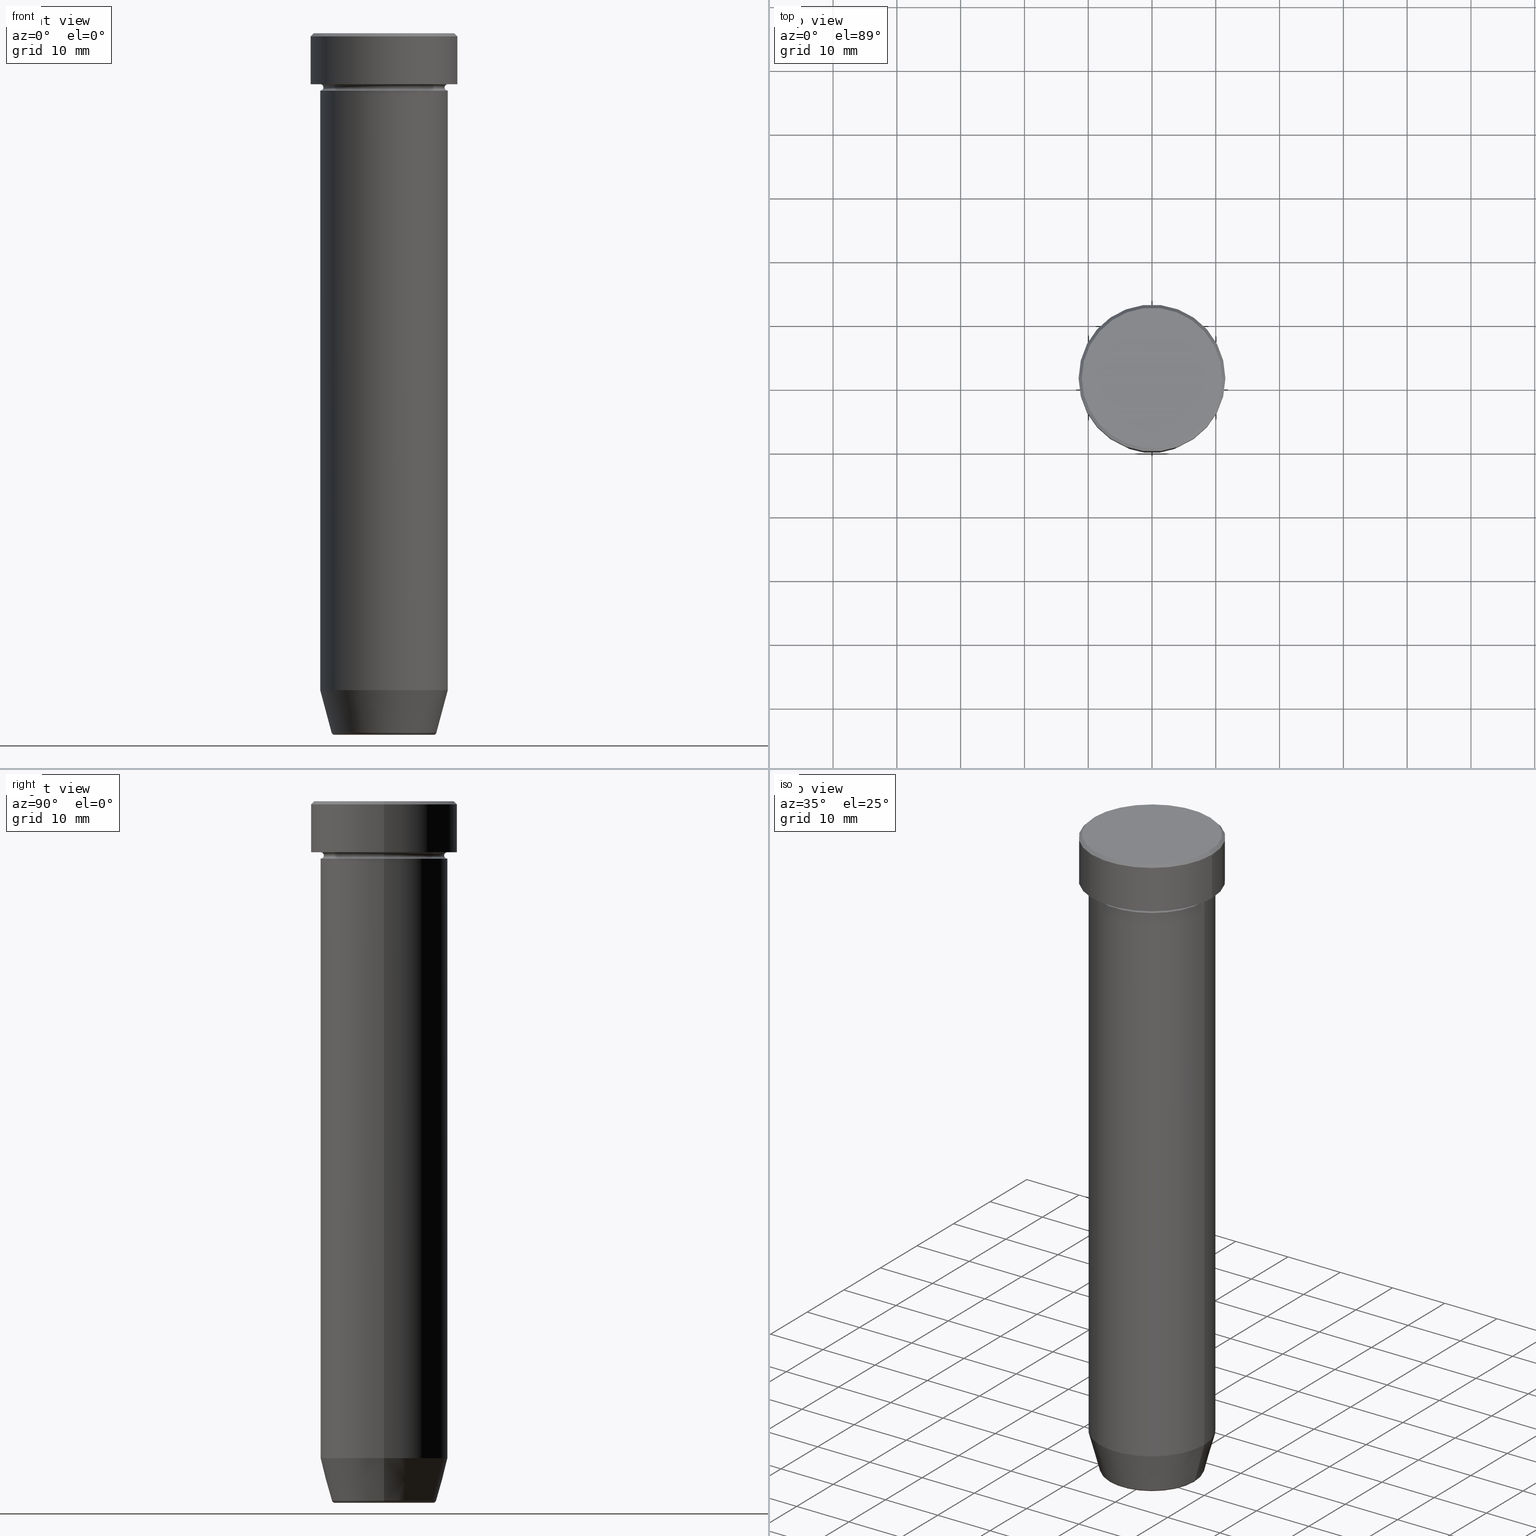
[diagram: canonical four-view strip — front | top / right | iso, engineering-drawing reading convention]
A machine part, canonical four-view strip (front | top / right | iso — engineering-drawing reading convention). The complete STEP part file that produces these views, byte-faithful:
ISO-10303-21;
HEADER;
FILE_DESCRIPTION (( 'STEP AP203' ),
    '1' );
FILE_NAME ('25fa.STEP',
    '2024-01-02T20:53:24',
    ( '' ),
    ( '' ),
    'SwSTEP 2.0',
    'SolidWorks 2019',
    '' );
FILE_SCHEMA (( 'CONFIG_CONTROL_DESIGN' ));
ENDSEC;

DATA;
#1 = CARTESIAN_POINT ( 'NONE',  ( 11.50000000000000000, 0.000000000000000000, 0.000000000000000000 ) ) ;
#2 = ORIENTED_EDGE ( 'NONE', *, *, #563, .T. ) ;
#3 = DIRECTION ( 'NONE',  ( -0.000000000000000000, -0.000000000000000000, 1.000000000000000000 ) ) ;
#4 = EDGE_CURVE ( 'NONE', #48, #431, #222, .T. ) ;
#5 = PERSON_AND_ORGANIZATION ( #367, #352 ) ;
#6 = TOROIDAL_SURFACE ( 'NONE', #512, 10.00000000000000000, 0.5000000000000000000 ) ;
#7 = AXIS2_PLACEMENT_3D ( 'NONE', #395, #582, #166 ) ;
#8 = CC_DESIGN_PERSON_AND_ORGANIZATION_ASSIGNMENT ( #53, #56, ( #172 ) ) ;
#9 = PERSON_AND_ORGANIZATION_ROLE ( 'creator' ) ;
#10 = DIRECTION ( 'NONE',  ( 1.000000000000000000, 0.000000000000000000, 0.000000000000000000 ) ) ;
#11 = CARTESIAN_POINT ( 'NONE',  ( 0.000000000000000000, 0.000000000000000000, -8.000000000000000000 ) ) ;
#12 = PERSON_AND_ORGANIZATION ( #367, #352 ) ;
#13 = CARTESIAN_POINT ( 'NONE',  ( 10.00000000000000000, 0.000000000000000000, 0.000000000000000000 ) ) ;
#14 = ORIENTED_EDGE ( 'NONE', *, *, #335, .F. ) ;
#15 = PERSON_AND_ORGANIZATION ( #367, #352 ) ;
#16 = CIRCLE ( 'NONE', #33, 0.5000000000000004441 ) ;
#17 = AXIS2_PLACEMENT_3D ( 'NONE', #109, #175, #354 ) ;
#18 = DIRECTION ( 'NONE',  ( 1.000000000000000000, 0.000000000000000000, 0.000000000000000000 ) ) ;
#19 = DIRECTION ( 'NONE',  ( -0.000000000000000000, -0.000000000000000000, 1.000000000000000000 ) ) ;
#20 = FACE_OUTER_BOUND ( 'NONE', #575, .T. ) ;
#21 = CARTESIAN_POINT ( 'NONE',  ( -7.740692158992654726, 9.775343368540039135E-16, -109.9999999999999858 ) ) ;
#22 = EDGE_CURVE ( 'NONE', #51, #410, #153, .T. ) ;
#23 = CARTESIAN_POINT ( 'NONE',  ( 0.000000000000000000, 0.000000000000000000, -109.9999999999999858 ) ) ;
#24 = EDGE_LOOP ( 'NONE', ( #357, #372 ) ) ;
#25 = FACE_OUTER_BOUND ( 'NONE', #392, .T. ) ;
#26 = AXIS2_PLACEMENT_3D ( 'NONE', #160, #426, #529 ) ;
#27 = CARTESIAN_POINT ( 'NONE',  ( 0.000000000000000000, 0.000000000000000000, -109.6294095225512564 ) ) ;
#28 = DIRECTION ( 'NONE',  ( -0.000000000000000000, -0.000000000000000000, 1.000000000000000000 ) ) ;
#29 = DIRECTION ( 'NONE',  ( 1.000000000000000000, 0.000000000000000000, 0.000000000000000000 ) ) ;
#30 = CC_DESIGN_PERSON_AND_ORGANIZATION_ASSIGNMENT ( #292, #463, ( #253 ) ) ;
#31 = PLANE ( 'NONE',  #83 ) ;
#32 = DIRECTION ( 'NONE',  ( -0.000000000000000000, -0.000000000000000000, 1.000000000000000000 ) ) ;
#33 = AXIS2_PLACEMENT_3D ( 'NONE', #124, #359, #534 ) ;
#34 = CIRCLE ( 'NONE', #45, 8.223655072137187716 ) ;
#35 = CIRCLE ( 'NONE', #415, 0.5000000000000004441 ) ;
#36 = DIRECTION ( 'NONE',  ( 0.000000000000000000, -1.000000000000000000, 0.000000000000000000 ) ) ;
#37 = EDGE_LOOP ( 'NONE', ( #191, #545, #553, #548 ) ) ;
#38 = EDGE_LOOP ( 'NONE', ( #455, #381 ) ) ;
#39 = EDGE_CURVE ( 'NONE', #136, #521, #16, .T. ) ;
#40 = FACE_OUTER_BOUND ( 'NONE', #240, .T. ) ;
#41 = EDGE_LOOP ( 'NONE', ( #382, #496, #364, #182 ) ) ;
#42 = DIRECTION ( 'NONE',  ( 1.000000000000000000, 0.000000000000000000, 0.000000000000000000 ) ) ;
#43 = ORIENTED_EDGE ( 'NONE', *, *, #554, .F. ) ;
#44 = VECTOR ( 'NONE', #139, 1000.000000000000000 ) ;
#45 = AXIS2_PLACEMENT_3D ( 'NONE', #528, #163, #217 ) ;
#46 = CARTESIAN_POINT ( 'NONE',  ( 0.000000000000000000, 0.000000000000000000, -9.000000000000001776 ) ) ;
#47 = AXIS2_PLACEMENT_3D ( 'NONE', #247, #571, #334 ) ;
#48 = VERTEX_POINT ( 'NONE', #540 ) ;
#49 = DIRECTION ( 'NONE',  ( -0.000000000000000000, -0.000000000000000000, 1.000000000000000000 ) ) ;
#50 = EDGE_CURVE ( 'NONE', #232, #279, #103, .T. ) ;
#51 = VERTEX_POINT ( 'NONE', #308 ) ;
#52 = EDGE_LOOP ( 'NONE', ( #509, #373, #498, #187 ) ) ;
#53 = PERSON_AND_ORGANIZATION ( #367, #352 ) ;
#54 = AXIS2_PLACEMENT_3D ( 'NONE', #264, #443, #29 ) ;
#55 = CARTESIAN_POINT ( 'NONE',  ( -10.00000000000000000, 0.000000000000000000, -8.500000000000000000 ) ) ;
#56 = PERSON_AND_ORGANIZATION_ROLE ( 'design_supplier' ) ;
#57 = CARTESIAN_POINT ( 'NONE',  ( 0.000000000000000000, 0.000000000000000000, 0.000000000000000000 ) ) ;
#58 = EDGE_CURVE ( 'NONE', #136, #48, #111, .T. ) ;
#59 = DIRECTION ( 'NONE',  ( -1.000000000000000000, 0.000000000000000000, 0.000000000000000000 ) ) ;
#60 = ORIENTED_EDGE ( 'NONE', *, *, #39, .F. ) ;
#61 = TOROIDAL_SURFACE ( 'NONE', #133, 10.00000000000000000, 0.5000000000000000000 ) ;
#62 = CARTESIAN_POINT ( 'NONE',  ( 7.740692158992654726, 0.000000000000000000, -109.9999999999999858 ) ) ;
#63 = DIRECTION ( 'NONE',  ( 1.000000000000000000, 0.000000000000000000, 0.000000000000000000 ) ) ;
#64 = ORIENTED_EDGE ( 'NONE', *, *, #453, .T. ) ;
#65 = CARTESIAN_POINT ( 'NONE',  ( 0.000000000000000000, 0.000000000000000000, -8.500000000000000000 ) ) ;
#66 = ADVANCED_FACE ( 'NONE', ( #176 ), #547, .T. ) ;
#67 = ORIENTED_EDGE ( 'NONE', *, *, #85, .F. ) ;
#68 = LINE ( 'NONE', #110, #459 ) ;
#69 = CARTESIAN_POINT ( 'NONE',  ( 0.000000000000000000, 0.000000000000000000, -8.000000000000000000 ) ) ;
#70 = DIRECTION ( 'NONE',  ( 0.000000000000000000, 0.000000000000000000, -1.000000000000000000 ) ) ;
#71 = CARTESIAN_POINT ( 'NONE',  ( 0.000000000000000000, 0.000000000000000000, -8.000000000000000000 ) ) ;
#72 = CARTESIAN_POINT ( 'NONE',  ( 0.000000000000000000, 0.000000000000000000, -22.00000000000000000 ) ) ;
#73 = AXIS2_PLACEMENT_3D ( 'NONE', #27, #429, #128 ) ;
#74 = ADVANCED_FACE ( 'NONE', ( #456 ), #184, .F. ) ;
#75 = DIRECTION ( 'NONE',  ( 1.224646799147353207E-16, 1.000000000000000000, 0.000000000000000000 ) ) ;
#76 = ORIENTED_EDGE ( 'NONE', *, *, #85, .T. ) ;
#77 = DIRECTION ( 'NONE',  ( -1.000000000000000000, -1.224646799147353454E-16, 0.000000000000000000 ) ) ;
#78 = DIRECTION ( 'NONE',  ( 1.000000000000000000, 0.000000000000000000, 0.000000000000000000 ) ) ;
#79 = ORIENTED_EDGE ( 'NONE', *, *, #597, .F. ) ;
#80 = CARTESIAN_POINT ( 'NONE',  ( 0.000000000000000000, 0.000000000000000000, -109.4999999999999858 ) ) ;
#81 = EDGE_LOOP ( 'NONE', ( #332, #319 ) ) ;
#82 = DIRECTION ( 'NONE',  ( 1.224646799147353207E-16, 1.000000000000000000, 0.000000000000000000 ) ) ;
#83 = AXIS2_PLACEMENT_3D ( 'NONE', #486, #310, #351 ) ;
#84 = CC_DESIGN_APPROVAL ( #181, ( #260 ) ) ;
#85 = EDGE_CURVE ( 'NONE', #440, #51, #239, .T. ) ;
#86 = VERTEX_POINT ( 'NONE', #408 ) ;
#87 = ORIENTED_EDGE ( 'NONE', *, *, #420, .T. ) ;
#88 = CARTESIAN_POINT ( 'NONE',  ( 0.000000000000000000, 0.000000000000000000, 0.000000000000000000 ) ) ;
#89 = ORIENTED_EDGE ( 'NONE', *, *, #453, .F. ) ;
#90 = ORIENTED_EDGE ( 'NONE', *, *, #335, .T. ) ;
#91 = TOROIDAL_SURFACE ( 'NONE', #559, 7.740692158992654726, 0.5000000000000000000 ) ;
#92 = DIRECTION ( 'NONE',  ( -0.000000000000000000, -0.000000000000000000, 1.000000000000000000 ) ) ;
#93 = CIRCLE ( 'NONE', #195, 11.50000000000000000 ) ;
#94 = EDGE_CURVE ( 'NONE', #284, #316, #556, .T. ) ;
#95 = CYLINDRICAL_SURFACE ( 'NONE', #186, 10.00000000000000000 ) ;
#96 = VERTEX_POINT ( 'NONE', #143 ) ;
#97 = COORDINATED_UNIVERSAL_TIME_OFFSET ( 1, 0, .AHEAD. ) ;
#98 = FACE_OUTER_BOUND ( 'NONE', #81, .T. ) ;
#99 = PERSON_AND_ORGANIZATION ( #367, #352 ) ;
#100 = FACE_OUTER_BOUND ( 'NONE', #313, .T. ) ;
#101 = ORIENTED_EDGE ( 'NONE', *, *, #141, .T. ) ;
#102 = APPROVAL_ROLE ( '' ) ;
#103 = CIRCLE ( 'NONE', #488, 7.740692158992654726 ) ;
#104 = AXIS2_PLACEMENT_3D ( 'NONE', #69, #487, #209 ) ;
#105 = FACE_OUTER_BOUND ( 'NONE', #140, .T. ) ;
#106 = ORIENTED_EDGE ( 'NONE', *, *, #22, .T. ) ;
#107 = ADVANCED_FACE ( 'NONE', ( #333, #98 ), #283, .T. ) ;
#108 = CARTESIAN_POINT ( 'NONE',  ( 0.000000000000000000, 0.000000000000000000, 0.000000000000000000 ) ) ;
#109 = CARTESIAN_POINT ( 'NONE',  ( 0.000000000000000000, 0.000000000000000000, 0.000000000000000000 ) ) ;
#110 = CARTESIAN_POINT ( 'NONE',  ( -11.50000000000000000, 1.408343819019456176E-15, 0.000000000000000000 ) ) ;
#111 = CIRCLE ( 'NONE', #448, 9.500000000000000000 ) ;
#112 = ADVANCED_FACE ( 'NONE', ( #549 ), #132, .F. ) ;
#113 = TOROIDAL_SURFACE ( 'NONE', #193, 7.740692158992654726, 0.5000000000000000000 ) ;
#114 = CARTESIAN_POINT ( 'NONE',  ( 0.000000000000000000, 0.000000000000000000, 0.000000000000000000 ) ) ;
#115 =( GEOMETRIC_REPRESENTATION_CONTEXT ( 3 ) GLOBAL_UNCERTAINTY_ASSIGNED_CONTEXT ( ( #428 ) ) GLOBAL_UNIT_ASSIGNED_CONTEXT ( ( #374, #225, #503 ) ) REPRESENTATION_CONTEXT ( 'NONE', 'WORKASPACE' ) );
#116 = ORIENTED_EDGE ( 'NONE', *, *, #168, .T. ) ;
#117 = CARTESIAN_POINT ( 'NONE',  ( 10.00000000000000000, 0.000000000000000000, 0.000000000000000000 ) ) ;
#118 = CARTESIAN_POINT ( 'NONE',  ( 0.000000000000000000, 0.000000000000000000, -109.9999999999999858 ) ) ;
#119 = PRODUCT_DEFINITION_SHAPE ( 'NONE', 'NONE',  #587 ) ;
#120 = CARTESIAN_POINT ( 'NONE',  ( 11.50000000000000000, 0.000000000000000000, -0.5000000000000073275 ) ) ;
#121 = CARTESIAN_POINT ( 'NONE',  ( -10.00000000000000000, 1.224646799147353256E-15, -8.500000000000000000 ) ) ;
#122 = ORIENTED_EDGE ( 'NONE', *, *, #94, .F. ) ;
#123 = AXIS2_PLACEMENT_3D ( 'NONE', #170, #483, #433 ) ;
#124 = CARTESIAN_POINT ( 'NONE',  ( 10.00000000000000000, 0.000000000000000000, -8.500000000000000000 ) ) ;
#125 = ORIENTED_EDGE ( 'NONE', *, *, #291, .T. ) ;
#126 = ADVANCED_FACE ( 'NONE', ( #148 ), #423, .T. ) ;
#127 = APPROVAL_DATE_TIME ( #261, #181 ) ;
#128 = DIRECTION ( 'NONE',  ( -1.000000000000000000, 0.000000000000000000, 0.000000000000000000 ) ) ;
#129 = EDGE_LOOP ( 'NONE', ( #460, #106, #276, #457 ) ) ;
#130 = DIRECTION ( 'NONE',  ( -0.000000000000000000, -0.000000000000000000, 1.000000000000000000 ) ) ;
#131 = ADVANCED_FACE ( 'NONE', ( #100 ), #550, .T. ) ;
#132 = PLANE ( 'NONE',  #502 ) ;
#133 = AXIS2_PLACEMENT_3D ( 'NONE', #219, #580, #259 ) ;
#134 = DIRECTION ( 'NONE',  ( 0.000000000000000000, 0.000000000000000000, -1.000000000000000000 ) ) ;
#135 = ORIENTED_EDGE ( 'NONE', *, *, #206, .F. ) ;
#136 = VERTEX_POINT ( 'NONE', #244 ) ;
#137 = CARTESIAN_POINT ( 'NONE',  ( 0.000000000000000000, 0.000000000000000000, 0.000000000000000000 ) ) ;
#138 = ORIENTED_EDGE ( 'NONE', *, *, #442, .T. ) ;
#139 = DIRECTION ( 'NONE',  ( -0.000000000000000000, -0.000000000000000000, 1.000000000000000000 ) ) ;
#140 = EDGE_LOOP ( 'NONE', ( #2, #210, #468, #330 ) ) ;
#141 = EDGE_CURVE ( 'NONE', #263, #521, #471, .T. ) ;
#142 = VERTEX_POINT ( 'NONE', #202 ) ;
#143 = CARTESIAN_POINT ( 'NONE',  ( -10.00000000000000000, 1.224646799147353256E-15, -9.000000000000001776 ) ) ;
#144 = CIRCLE ( 'NONE', #104, 11.50000000000000000 ) ;
#145 = APPLICATION_PROTOCOL_DEFINITION ( 'international standard', 'config_control_design', 1994, #227 ) ;
#146 = VERTEX_POINT ( 'NONE', #481 ) ;
#147 = APPROVAL_DATE_TIME ( #346, #262 ) ;
#148 = FACE_OUTER_BOUND ( 'NONE', #517, .T. ) ;
#149 = CALENDAR_DATE ( 2024, 2, 1 ) ;
#150 = EDGE_CURVE ( 'NONE', #270, #142, #434, .T. ) ;
#151 = DIRECTION ( 'NONE',  ( 1.000000000000000000, 0.000000000000000000, 0.000000000000000000 ) ) ;
#152 = ORIENTED_EDGE ( 'NONE', *, *, #94, .T. ) ;
#153 = CIRCLE ( 'NONE', #369, 10.00000000000000000 ) ;
#154 = PERSON_AND_ORGANIZATION ( #367, #352 ) ;
#155 = VECTOR ( 'NONE', #479, 1000.000000000000000 ) ;
#156 = APPROVAL_PERSON_ORGANIZATION ( #154, #181, #541 ) ;
#157 = MECHANICAL_CONTEXT ( 'NONE', #506, 'mechanical' ) ;
#158 = DIRECTION ( 'NONE',  ( -0.000000000000000000, -0.000000000000000000, 1.000000000000000000 ) ) ;
#159 = CC_DESIGN_DATE_AND_TIME_ASSIGNMENT ( #339, #422, ( #587 ) ) ;
#160 = CARTESIAN_POINT ( 'NONE',  ( 0.000000000000000000, 0.000000000000000000, -8.500000000000000000 ) ) ;
#161 = AXIS2_PLACEMENT_3D ( 'NONE', #413, #179, #366 ) ;
#162 = AXIS2_PLACEMENT_3D ( 'NONE', #214, #542, #63 ) ;
#163 = DIRECTION ( 'NONE',  ( -0.000000000000000000, -0.000000000000000000, 1.000000000000000000 ) ) ;
#164 = CARTESIAN_POINT ( 'NONE',  ( 0.000000000000000000, 0.000000000000000000, -109.9999999999999858 ) ) ;
#165 = DIRECTION ( 'NONE',  ( 1.000000000000000000, 0.000000000000000000, 0.000000000000000000 ) ) ;
#166 = DIRECTION ( 'NONE',  ( -1.000000000000000000, 0.000000000000000000, 0.000000000000000000 ) ) ;
#167 = LINE ( 'NONE', #397, #350 ) ;
#168 = EDGE_CURVE ( 'NONE', #146, #431, #204, .T. ) ;
#169 = DIRECTION ( 'NONE',  ( -0.000000000000000000, -0.000000000000000000, 1.000000000000000000 ) ) ;
#170 = CARTESIAN_POINT ( 'NONE',  ( 0.000000000000000000, 0.000000000000000000, -102.9999999999999858 ) ) ;
#171 = CONICAL_SURFACE ( 'NONE', #414, 11.00000000000000000, 0.7853981633974415066 ) ;
#172 = PRODUCT_DEFINITION_FORMATION_WITH_SPECIFIED_SOURCE ( 'LIBOVOLN�', '', #253, .NOT_KNOWN. ) ;
#173 = DIRECTION ( 'NONE',  ( 1.000000000000000000, 0.000000000000000000, 0.000000000000000000 ) ) ;
#174 = EDGE_LOOP ( 'NONE', ( #273, #409, #290, #376 ) ) ;
#175 = DIRECTION ( 'NONE',  ( -0.000000000000000000, -0.000000000000000000, 1.000000000000000000 ) ) ;
#176 = FACE_OUTER_BOUND ( 'NONE', #129, .T. ) ;
#177 = EDGE_CURVE ( 'NONE', #328, #316, #424, .T. ) ;
#178 = CARTESIAN_POINT ( 'NONE',  ( 0.000000000000000000, 0.000000000000000000, -9.000000000000001776 ) ) ;
#179 = DIRECTION ( 'NONE',  ( 0.000000000000000000, 0.000000000000000000, -1.000000000000000000 ) ) ;
#180 = DIRECTION ( 'NONE',  ( 1.000000000000000000, 0.000000000000000000, 0.000000000000000000 ) ) ;
#181 = APPROVAL ( #343, 'NEUR�EN�' ) ;
#182 = ORIENTED_EDGE ( 'NONE', *, *, #554, .T. ) ;
#183 = CARTESIAN_POINT ( 'NONE',  ( -10.00000000000000000, 1.224646799147353256E-15, 0.000000000000000000 ) ) ;
#184 = PLANE ( 'NONE',  #309 ) ;
#185 = VECTOR ( 'NONE', #318, 1000.000000000000000 ) ;
#186 = AXIS2_PLACEMENT_3D ( 'NONE', #88, #378, #235 ) ;
#187 = ORIENTED_EDGE ( 'NONE', *, *, #168, .F. ) ;
#188 = LOCAL_TIME ( 21, 53, 24.00000000000000000, #203 ) ;
#189 = DIRECTION ( 'NONE',  ( -0.000000000000000000, -0.000000000000000000, 1.000000000000000000 ) ) ;
#190 = ADVANCED_FACE ( 'NONE', ( #574 ), #387, .T. ) ;
#191 = ORIENTED_EDGE ( 'NONE', *, *, #427, .T. ) ;
#192 = MANIFOLD_SOLID_BREP ( 'Zaoblit4', #298 ) ;
#193 = AXIS2_PLACEMENT_3D ( 'NONE', #398, #390, #252 ) ;
#194 = APPROVAL_STATUS ( 'not_yet_approved' ) ;
#195 = AXIS2_PLACEMENT_3D ( 'NONE', #363, #599, #461 ) ;
#196 = CARTESIAN_POINT ( 'NONE',  ( 0.000000000000000000, 0.000000000000000000, 0.000000000000000000 ) ) ;
#197 = DIRECTION ( 'NONE',  ( -1.000000000000000000, 0.000000000000000000, -0.000000000000000000 ) ) ;
#198 = ORIENTED_EDGE ( 'NONE', *, *, #282, .F. ) ;
#199 = ADVANCED_FACE ( 'NONE', ( #526 ), #171, .T. ) ;
#200 = CARTESIAN_POINT ( 'NONE',  ( 0.000000000000000000, 0.000000000000000000, -0.5000000000000073275 ) ) ;
#201 = DATE_AND_TIME ( #419, #386 ) ;
#202 = CARTESIAN_POINT ( 'NONE',  ( -11.00000000000000000, 0.000000000000000000, 0.000000000000000000 ) ) ;
#203 = COORDINATED_UNIVERSAL_TIME_OFFSET ( 1, 0, .AHEAD. ) ;
#204 = CIRCLE ( 'NONE', #324, 10.00000000000000000 ) ;
#205 = DIRECTION ( 'NONE',  ( -1.000000000000000000, 0.000000000000000000, 0.000000000000000000 ) ) ;
#206 = EDGE_CURVE ( 'NONE', #142, #328, #349, .T. ) ;
#207 = DIRECTION ( 'NONE',  ( 0.000000000000000000, 0.000000000000000000, -1.000000000000000000 ) ) ;
#208 = ORIENTED_EDGE ( 'NONE', *, *, #141, .F. ) ;
#209 = DIRECTION ( 'NONE',  ( 1.000000000000000000, 0.000000000000000000, 0.000000000000000000 ) ) ;
#210 = ORIENTED_EDGE ( 'NONE', *, *, #345, .T. ) ;
#211 = VECTOR ( 'NONE', #19, 1000.000000000000000 ) ;
#212 = DIRECTION ( 'NONE',  ( -0.000000000000000000, -0.000000000000000000, 1.000000000000000000 ) ) ;
#213 = AXIS2_PLACEMENT_3D ( 'NONE', #137, #92, #180 ) ;
#214 = CARTESIAN_POINT ( 'NONE',  ( 0.000000000000000000, 0.000000000000000000, -22.00000000000000000 ) ) ;
#215 = ADVANCED_FACE ( 'NONE', ( #340 ), #567, .F. ) ;
#216 = FACE_OUTER_BOUND ( 'NONE', #561, .T. ) ;
#217 = DIRECTION ( 'NONE',  ( -1.000000000000000000, 0.000000000000000000, 0.000000000000000000 ) ) ;
#218 = CC_DESIGN_PERSON_AND_ORGANIZATION_ASSIGNMENT ( #99, #9, ( #172 ) ) ;
#219 = CARTESIAN_POINT ( 'NONE',  ( 0.000000000000000000, 0.000000000000000000, -8.500000000000000000 ) ) ;
#220 = FACE_OUTER_BOUND ( 'NONE', #505, .T. ) ;
#221 = DIRECTION ( 'NONE',  ( 1.000000000000000000, 0.000000000000000000, 0.000000000000000000 ) ) ;
#222 = CIRCLE ( 'NONE', #558, 0.5000000000000004441 ) ;
#223 = CIRCLE ( 'NONE', #277, 10.00000000000000000 ) ;
#224 = ADVANCED_FACE ( 'NONE', ( #105 ), #6, .F. ) ;
#225 =( NAMED_UNIT ( * ) PLANE_ANGLE_UNIT ( ) SI_UNIT ( $, .RADIAN. ) );
#226 = ORIENTED_EDGE ( 'NONE', *, *, #50, .T. ) ;
#227 = APPLICATION_CONTEXT ( 'configuration controlled 3d designs of mechanical parts and assemblies' ) ;
#228 = VERTEX_POINT ( 'NONE', #294 ) ;
#229 = AXIS2_PLACEMENT_3D ( 'NONE', #321, #501, #508 ) ;
#230 = CARTESIAN_POINT ( 'NONE',  ( -8.124355652982135467, 9.949466145559276583E-16, -109.9999999999999858 ) ) ;
#231 = AXIS2_PLACEMENT_3D ( 'NONE', #200, #568, #151 ) ;
#232 = VERTEX_POINT ( 'NONE', #62 ) ;
#233 = CARTESIAN_POINT ( 'NONE',  ( 0.000000000000000000, 0.000000000000000000, -8.500000000000000000 ) ) ;
#234 = EDGE_LOOP ( 'NONE', ( #476, #116 ) ) ;
#235 = DIRECTION ( 'NONE',  ( 1.000000000000000000, 0.000000000000000000, 0.000000000000000000 ) ) ;
#236 = EDGE_CURVE ( 'NONE', #142, #270, #362, .T. ) ;
#237 = DIRECTION ( 'NONE',  ( 0.000000000000000000, -0.000000000000000000, 1.000000000000000000 ) ) ;
#238 = ORIENTED_EDGE ( 'NONE', *, *, #524, .T. ) ;
#239 = LINE ( 'NONE', #230, #412 ) ;
#240 = EDGE_LOOP ( 'NONE', ( #271, #238, #421, #60 ) ) ;
#241 = EDGE_CURVE ( 'NONE', #410, #514, #446, .T. ) ;
#242 = AXIS2_PLACEMENT_3D ( 'NONE', #306, #576, #78 ) ;
#243 = DIRECTION ( 'NONE',  ( -0.000000000000000000, -0.000000000000000000, 1.000000000000000000 ) ) ;
#244 = CARTESIAN_POINT ( 'NONE',  ( 9.500000000000000000, 0.000000000000000000, -8.500000000000000000 ) ) ;
#245 = EDGE_LOOP ( 'NONE', ( #338, #555, #101, #303 ) ) ;
#246 = EDGE_CURVE ( 'NONE', #86, #514, #223, .T. ) ;
#247 = CARTESIAN_POINT ( 'NONE',  ( 0.000000000000000000, 0.000000000000000000, 0.000000000000000000 ) ) ;
#248 = VECTOR ( 'NONE', #344, 1000.000000000000000 ) ;
#249 = LOCAL_TIME ( 21, 53, 24.00000000000000000, #97 ) ;
#250 = DIRECTION ( 'NONE',  ( -0.000000000000000000, -0.000000000000000000, 1.000000000000000000 ) ) ;
#251 = ORIENTED_EDGE ( 'NONE', *, *, #206, .T. ) ;
#252 = DIRECTION ( 'NONE',  ( 1.000000000000000000, 0.000000000000000000, 0.000000000000000000 ) ) ;
#253 = PRODUCT ( '25fa', '25fa', '', ( #157 ) ) ;
#254 = CARTESIAN_POINT ( 'NONE',  ( -10.00000000000000000, 1.224646799147353256E-15, -22.00000000000000000 ) ) ;
#255 = FACE_OUTER_BOUND ( 'NONE', #41, .T. ) ;
#256 = ADVANCED_FACE ( 'NONE', ( #497 ), #543, .T. ) ;
#257 = DIRECTION ( 'NONE',  ( 1.000000000000000000, 0.000000000000000000, 0.000000000000000000 ) ) ;
#258 = AXIS2_PLACEMENT_3D ( 'NONE', #164, #439, #221 ) ;
#259 = DIRECTION ( 'NONE',  ( 1.000000000000000000, 0.000000000000000000, 0.000000000000000000 ) ) ;
#260 = SECURITY_CLASSIFICATION ( '', '', #285 ) ;
#261 = DATE_AND_TIME ( #581, #552 ) ;
#262 = APPROVAL ( #194, 'NEUR�EN�' ) ;
#263 = VERTEX_POINT ( 'NONE', #307 ) ;
#264 = CARTESIAN_POINT ( 'NONE',  ( 0.000000000000000000, 0.000000000000000000, -22.00000000000000000 ) ) ;
#265 = ORIENTED_EDGE ( 'NONE', *, *, #442, .F. ) ;
#266 = DIRECTION ( 'NONE',  ( 1.000000000000000000, 0.000000000000000000, 0.000000000000000000 ) ) ;
#267 = CC_DESIGN_PERSON_AND_ORGANIZATION_ASSIGNMENT ( #562, #472, ( #587 ) ) ;
#268 = VECTOR ( 'NONE', #49, 1000.000000000000000 ) ;
#269 = ADVANCED_BREP_SHAPE_REPRESENTATION ( '25fa', ( #391, #192, #47 ), #115 ) ;
#270 = VERTEX_POINT ( 'NONE', #320 ) ;
#271 = ORIENTED_EDGE ( 'NONE', *, *, #563, .F. ) ;
#272 = CARTESIAN_POINT ( 'NONE',  ( 0.000000000000000000, 7.347880794884118356E-15, -109.9999999999999858 ) ) ;
#273 = ORIENTED_EDGE ( 'NONE', *, *, #274, .F. ) ;
#274 = EDGE_CURVE ( 'NONE', #279, #440, #371, .T. ) ;
#275 = DIRECTION ( 'NONE',  ( -1.000000000000000000, 1.224646799147353454E-16, 0.000000000000000000 ) ) ;
#276 = ORIENTED_EDGE ( 'NONE', *, *, #241, .T. ) ;
#277 = AXIS2_PLACEMENT_3D ( 'NONE', #430, #212, #394 ) ;
#278 = AXIS2_PLACEMENT_3D ( 'NONE', #595, #189, #510 ) ;
#279 = VERTEX_POINT ( 'NONE', #21 ) ;
#280 = DIRECTION ( 'NONE',  ( 1.000000000000000000, 0.000000000000000000, 0.000000000000000000 ) ) ;
#281 = APPROVAL_DATE_TIME ( #411, #474 ) ;
#282 = EDGE_CURVE ( 'NONE', #445, #263, #311, .T. ) ;
#283 = PLANE ( 'NONE',  #161 ) ;
#284 = VERTEX_POINT ( 'NONE', #484 ) ;
#285 = SECURITY_CLASSIFICATION_LEVEL ( 'unclassified' ) ;
#286 = CARTESIAN_POINT ( 'NONE',  ( 0.000000000000000000, 0.000000000000000000, 0.000000000000000000 ) ) ;
#287 = AXIS2_PLACEMENT_3D ( 'NONE', #114, #207, #572 ) ;
#288 = AXIS2_PLACEMENT_3D ( 'NONE', #523, #519, #475 ) ;
#289 = DIRECTION ( 'NONE',  ( 0.000000000000000000, 0.000000000000000000, -1.000000000000000000 ) ) ;
#290 = ORIENTED_EDGE ( 'NONE', *, *, #570, .T. ) ;
#291 = EDGE_CURVE ( 'NONE', #228, #284, #144, .T. ) ;
#292 = PERSON_AND_ORGANIZATION ( #367, #352 ) ;
#293 = FACE_OUTER_BOUND ( 'NONE', #591, .T. ) ;
#294 = CARTESIAN_POINT ( 'NONE',  ( -11.50000000000000000, 1.408343819019456176E-15, -8.000000000000000000 ) ) ;
#295 = ORIENTED_EDGE ( 'NONE', *, *, #407, .T. ) ;
#296 = APPLICATION_PROTOCOL_DEFINITION ( 'international standard', 'config_control_design', 1994, #506 ) ;
#297 = DIRECTION ( 'NONE',  ( 0.000000000000000000, 0.000000000000000000, -1.000000000000000000 ) ) ;
#298 = CLOSED_SHELL ( 'NONE', ( #327, #469, #360, #112, #66, #317, #74, #458 ) ) ;
#299 = AXIS2_PLACEMENT_3D ( 'NONE', #23, #393, #173 ) ;
#300 = AXIS2_PLACEMENT_3D ( 'NONE', #121, #75, #275 ) ;
#301 = CARTESIAN_POINT ( 'NONE',  ( -11.00000000000000000, 0.000000000000000000, 0.000000000000000000 ) ) ;
#302 = SHAPE_DEFINITION_REPRESENTATION ( #119, #269 ) ;
#303 = ORIENTED_EDGE ( 'NONE', *, *, #537, .F. ) ;
#304 = DIRECTION ( 'NONE',  ( -1.000000000000000000, 1.224646799147353454E-16, 0.000000000000000000 ) ) ;
#305 = ADVANCED_FACE ( 'NONE', ( #255 ), #61, .F. ) ;
#306 = CARTESIAN_POINT ( 'NONE',  ( 0.000000000000000000, 0.000000000000000000, -109.9999999999999858 ) ) ;
#307 = CARTESIAN_POINT ( 'NONE',  ( 10.00000000000000000, 0.000000000000000000, -22.00000000000000000 ) ) ;
#308 = CARTESIAN_POINT ( 'NONE',  ( -10.00000000000000000, 1.224646799147353256E-15, -102.9999999999999858 ) ) ;
#309 = AXIS2_PLACEMENT_3D ( 'NONE', #272, #237, #42 ) ;
#310 = DIRECTION ( 'NONE',  ( 0.000000000000000000, 0.000000000000000000, -1.000000000000000000 ) ) ;
#311 = CIRCLE ( 'NONE', #341, 10.00000000000000000 ) ;
#312 = AXIS2_PLACEMENT_3D ( 'NONE', #178, #592, #322 ) ;
#313 = EDGE_LOOP ( 'NONE', ( #14, #348, #251, #79 ) ) ;
#314 = CARTESIAN_POINT ( 'NONE',  ( 10.00000000000000000, 1.224646799147353256E-15, -8.500000000000000000 ) ) ;
#315 = DIRECTION ( 'NONE',  ( -0.000000000000000000, -0.000000000000000000, 1.000000000000000000 ) ) ;
#316 = VERTEX_POINT ( 'NONE', #120 ) ;
#317 = ADVANCED_FACE ( 'NONE', ( #25 ), #436, .T. ) ;
#318 = DIRECTION ( 'NONE',  ( -0.000000000000000000, -0.000000000000000000, 1.000000000000000000 ) ) ;
#319 = ORIENTED_EDGE ( 'NONE', *, *, #291, .F. ) ;
#320 = CARTESIAN_POINT ( 'NONE',  ( 11.00000000000000000, 1.377727649040772389E-15, 0.000000000000000000 ) ) ;
#321 = CARTESIAN_POINT ( 'NONE',  ( 0.000000000000000000, 0.000000000000000000, 0.000000000000000000 ) ) ;
#322 = DIRECTION ( 'NONE',  ( 1.000000000000000000, 0.000000000000000000, 0.000000000000000000 ) ) ;
#323 = CLOSED_SHELL ( 'NONE', ( #199, #224, #544, #126, #579, #490, #190, #377, #107, #256, #305, #215, #131 ) ) ;
#324 = AXIS2_PLACEMENT_3D ( 'NONE', #11, #250, #59 ) ;
#325 = TOROIDAL_SURFACE ( 'NONE', #278, 10.00000000000000000, 0.5000000000000000000 ) ;
#326 = CYLINDRICAL_SURFACE ( 'NONE', #213, 11.50000000000000000 ) ;
#327 = ADVANCED_FACE ( 'NONE', ( #216 ), #91, .T. ) ;
#328 = VERTEX_POINT ( 'NONE', #396 ) ;
#329 = DIRECTION ( 'NONE',  ( 1.000000000000000000, 0.000000000000000000, 0.000000000000000000 ) ) ;
#330 = ORIENTED_EDGE ( 'NONE', *, *, #4, .F. ) ;
#331 = VERTEX_POINT ( 'NONE', #584 ) ;
#332 = ORIENTED_EDGE ( 'NONE', *, *, #500, .F. ) ;
#333 = FACE_BOUND ( 'NONE', #234, .T. ) ;
#334 = DIRECTION ( 'NONE',  ( 1.000000000000000000, 0.000000000000000000, 0.000000000000000000 ) ) ;
#335 = EDGE_CURVE ( 'NONE', #270, #316, #167, .T. ) ;
#336 = CALENDAR_DATE ( 2024, 2, 1 ) ;
#337 = DIRECTION ( 'NONE',  ( -0.000000000000000000, -0.000000000000000000, 1.000000000000000000 ) ) ;
#338 = ORIENTED_EDGE ( 'NONE', *, *, #370, .F. ) ;
#339 = DATE_AND_TIME ( #149, #249 ) ;
#340 = FACE_OUTER_BOUND ( 'NONE', #52, .T. ) ;
#341 = AXIS2_PLACEMENT_3D ( 'NONE', #72, #28, #399 ) ;
#342 = CIRCLE ( 'NONE', #596, 9.500000000000000000 ) ;
#343 = APPROVAL_STATUS ( 'not_yet_approved' ) ;
#344 = DIRECTION ( 'NONE',  ( -0.7071067811865426878, 0.000000000000000000, -0.7071067811865524577 ) ) ;
#345 = EDGE_CURVE ( 'NONE', #136, #146, #449, .T. ) ;
#346 = DATE_AND_TIME ( #336, #188 ) ;
#347 = DIRECTION ( 'NONE',  ( 0.000000000000000000, 0.000000000000000000, -1.000000000000000000 ) ) ;
#348 = ORIENTED_EDGE ( 'NONE', *, *, #236, .F. ) ;
#349 = LINE ( 'NONE', #301, #248 ) ;
#350 = VECTOR ( 'NONE', #358, 1000.000000000000000 ) ;
#351 = DIRECTION ( 'NONE',  ( -1.000000000000000000, 0.000000000000000000, -0.000000000000000000 ) ) ;
#352 = ORGANIZATION ( 'NEUR�EN�', 'NEUR�EN�', '' ) ;
#353 = EDGE_CURVE ( 'NONE', #514, #86, #551, .T. ) ;
#354 = DIRECTION ( 'NONE',  ( 1.000000000000000000, 0.000000000000000000, 0.000000000000000000 ) ) ;
#355 = CARTESIAN_POINT ( 'NONE',  ( 8.124355652982135467, 0.000000000000000000, -109.9999999999999858 ) ) ;
#356 = DIRECTION ( 'NONE',  ( -0.000000000000000000, -0.000000000000000000, 1.000000000000000000 ) ) ;
#357 = ORIENTED_EDGE ( 'NONE', *, *, #353, .T. ) ;
#358 = DIRECTION ( 'NONE',  ( 0.7071067811865426878, 8.659560562354874926E-17, -0.7071067811865524577 ) ) ;
#359 = DIRECTION ( 'NONE',  ( 0.000000000000000000, -1.000000000000000000, 0.000000000000000000 ) ) ;
#360 = ADVANCED_FACE ( 'NONE', ( #585 ), #95, .T. ) ;
#361 = CARTESIAN_POINT ( 'NONE',  ( -10.00000000000000000, 0.000000000000000000, -8.000000000000000000 ) ) ;
#362 = CIRCLE ( 'NONE', #17, 11.00000000000000000 ) ;
#363 = CARTESIAN_POINT ( 'NONE',  ( 0.000000000000000000, 0.000000000000000000, -0.5000000000000073275 ) ) ;
#364 = ORIENTED_EDGE ( 'NONE', *, *, #39, .T. ) ;
#365 = ORIENTED_EDGE ( 'NONE', *, *, #500, .T. ) ;
#366 = DIRECTION ( 'NONE',  ( -1.000000000000000000, 0.000000000000000000, -0.000000000000000000 ) ) ;
#367 = PERSON ( 'NEUR�EN�', 'NEUR�EN�', 'NEUR�EN�', ('NEUR�EN�'), ('NEUR�EN�'), ('NEUR�EN�') ) ;
#368 = AXIS2_PLACEMENT_3D ( 'NONE', #57, #158, #564 ) ;
#369 = AXIS2_PLACEMENT_3D ( 'NONE', #447, #169, #165 ) ;
#370 = EDGE_CURVE ( 'NONE', #445, #96, #406, .T. ) ;
#371 = CIRCLE ( 'NONE', #435, 0.5000000000000004441 ) ;
#372 = ORIENTED_EDGE ( 'NONE', *, *, #246, .T. ) ;
#373 = ORIENTED_EDGE ( 'NONE', *, *, #58, .T. ) ;
#374 =( LENGTH_UNIT ( ) NAMED_UNIT ( * ) SI_UNIT ( .MILLI., .METRE. ) );
#375 = ORIENTED_EDGE ( 'NONE', *, *, #274, .T. ) ;
#376 = ORIENTED_EDGE ( 'NONE', *, *, #407, .F. ) ;
#377 = ADVANCED_FACE ( 'NONE', ( #293 ), #473, .T. ) ;
#378 = DIRECTION ( 'NONE',  ( -0.000000000000000000, -0.000000000000000000, 1.000000000000000000 ) ) ;
#379 = CIRCLE ( 'NONE', #162, 10.00000000000000000 ) ;
#380 = AXIS2_PLACEMENT_3D ( 'NONE', #46, #3, #329 ) ;
#381 = ORIENTED_EDGE ( 'NONE', *, *, #150, .T. ) ;
#382 = ORIENTED_EDGE ( 'NONE', *, *, #524, .F. ) ;
#383 = DIRECTION ( 'NONE',  ( -1.000000000000000000, 0.000000000000000000, 0.000000000000000000 ) ) ;
#384 = EDGE_CURVE ( 'NONE', #279, #232, #477, .T. ) ;
#385 = CIRCLE ( 'NONE', #123, 10.00000000000000000 ) ;
#386 = LOCAL_TIME ( 21, 53, 24.00000000000000000, #470 ) ;
#387 = PLANE ( 'NONE',  #288 ) ;
#388 = EDGE_LOOP ( 'NONE', ( #365, #138, #583, #122 ) ) ;
#389 = EDGE_CURVE ( 'NONE', #51, #86, #444, .T. ) ;
#390 = DIRECTION ( 'NONE',  ( -0.000000000000000000, -0.000000000000000000, 1.000000000000000000 ) ) ;
#391 = MANIFOLD_SOLID_BREP ( 'Zkosen�1', #323 ) ;
#392 = EDGE_LOOP ( 'NONE', ( #67, #295, #87, #598 ) ) ;
#393 = DIRECTION ( 'NONE',  ( 0.000000000000000000, 0.000000000000000000, -1.000000000000000000 ) ) ;
#394 = DIRECTION ( 'NONE',  ( 1.000000000000000000, 0.000000000000000000, 0.000000000000000000 ) ) ;
#395 = CARTESIAN_POINT ( 'NONE',  ( 0.000000000000000000, 0.000000000000000000, -8.000000000000000000 ) ) ;
#396 = CARTESIAN_POINT ( 'NONE',  ( -11.50000000000000000, 1.408343819019456176E-15, -0.5000000000000073275 ) ) ;
#397 = CARTESIAN_POINT ( 'NONE',  ( 11.00000000000000000, 1.347111479062088405E-15, 0.000000000000000000 ) ) ;
#398 = CARTESIAN_POINT ( 'NONE',  ( 0.000000000000000000, 0.000000000000000000, -109.4999999999999858 ) ) ;
#399 = DIRECTION ( 'NONE',  ( 1.000000000000000000, 0.000000000000000000, 0.000000000000000000 ) ) ;
#400 = DIRECTION ( 'NONE',  ( 1.000000000000000000, 0.000000000000000000, 0.000000000000000000 ) ) ;
#401 = EDGE_CURVE ( 'NONE', #331, #440, #34, .T. ) ;
#402 = FACE_OUTER_BOUND ( 'NONE', #388, .T. ) ;
#403 = ORIENTED_EDGE ( 'NONE', *, *, #150, .F. ) ;
#404 = CIRCLE ( 'NONE', #73, 8.223655072137187716 ) ;
#405 = DIRECTION ( 'NONE',  ( -0.000000000000000000, -0.000000000000000000, 1.000000000000000000 ) ) ;
#406 = LINE ( 'NONE', #183, #268 ) ;
#407 = EDGE_CURVE ( 'NONE', #440, #331, #404, .T. ) ;
#408 = CARTESIAN_POINT ( 'NONE',  ( -10.00000000000000000, 1.224646799147353256E-15, -22.00000000000000000 ) ) ;
#409 = ORIENTED_EDGE ( 'NONE', *, *, #50, .F. ) ;
#410 = VERTEX_POINT ( 'NONE', #589 ) ;
#411 = DATE_AND_TIME ( #417, #531 ) ;
#412 = VECTOR ( 'NONE', #516, 1000.000000000000000 ) ;
#413 = CARTESIAN_POINT ( 'NONE',  ( 0.000000000000000000, 11.50000000000000000, -8.000000000000000000 ) ) ;
#414 = AXIS2_PLACEMENT_3D ( 'NONE', #108, #297, #383 ) ;
#415 = AXIS2_PLACEMENT_3D ( 'NONE', #511, #36, #134 ) ;
#416 = ORIENTED_EDGE ( 'NONE', *, *, #420, .F. ) ;
#417 = CALENDAR_DATE ( 2024, 2, 1 ) ;
#418 = DIRECTION ( 'NONE',  ( -0.000000000000000000, -1.000000000000000000, -0.000000000000000000 ) ) ;
#419 = CALENDAR_DATE ( 2024, 2, 1 ) ;
#420 = EDGE_CURVE ( 'NONE', #331, #410, #532, .T. ) ;
#421 = ORIENTED_EDGE ( 'NONE', *, *, #537, .T. ) ;
#422 = DATE_TIME_ROLE ( 'creation_date' ) ;
#423 = CYLINDRICAL_SURFACE ( 'NONE', #368, 10.00000000000000000 ) ;
#424 = CIRCLE ( 'NONE', #231, 11.50000000000000000 ) ;
#425 = APPROVAL_PERSON_ORGANIZATION ( #15, #474, #102 ) ;
#426 = DIRECTION ( 'NONE',  ( 0.000000000000000000, 0.000000000000000000, -1.000000000000000000 ) ) ;
#427 = EDGE_CURVE ( 'NONE', #410, #51, #385, .T. ) ;
#428 = UNCERTAINTY_MEASURE_WITH_UNIT (LENGTH_MEASURE( 1.000000000000000082E-05 ), #374, 'distance_accuracy_value', 'NONE');
#429 = DIRECTION ( 'NONE',  ( -0.000000000000000000, -0.000000000000000000, 1.000000000000000000 ) ) ;
#430 = CARTESIAN_POINT ( 'NONE',  ( 0.000000000000000000, 0.000000000000000000, -22.00000000000000000 ) ) ;
#431 = VERTEX_POINT ( 'NONE', #361 ) ;
#432 = CC_DESIGN_PERSON_AND_ORGANIZATION_ASSIGNMENT ( #12, #525, ( #260 ) ) ;
#433 = DIRECTION ( 'NONE',  ( 1.000000000000000000, 0.000000000000000000, 0.000000000000000000 ) ) ;
#434 = CIRCLE ( 'NONE', #466, 11.00000000000000000 ) ;
#435 = AXIS2_PLACEMENT_3D ( 'NONE', #499, #82, #304 ) ;
#436 = CONICAL_SURFACE ( 'NONE', #258, 8.124355652982135467, 0.2617993877991500740 ) ;
#437 = CARTESIAN_POINT ( 'NONE',  ( -10.00000000000000000, 1.224646799147353256E-15, 0.000000000000000000 ) ) ;
#438 = CC_DESIGN_SECURITY_CLASSIFICATION ( #260, ( #172 ) ) ;
#439 = DIRECTION ( 'NONE',  ( -0.000000000000000000, -0.000000000000000000, 1.000000000000000000 ) ) ;
#440 = VERTEX_POINT ( 'NONE', #535 ) ;
#441 = DIRECTION ( 'NONE',  ( -0.000000000000000000, -0.000000000000000000, 1.000000000000000000 ) ) ;
#442 = EDGE_CURVE ( 'NONE', #228, #328, #68, .T. ) ;
#443 = DIRECTION ( 'NONE',  ( -0.000000000000000000, -0.000000000000000000, 1.000000000000000000 ) ) ;
#444 = LINE ( 'NONE', #437, #185 ) ;
#445 = VERTEX_POINT ( 'NONE', #254 ) ;
#446 = LINE ( 'NONE', #117, #588 ) ;
#447 = CARTESIAN_POINT ( 'NONE',  ( 0.000000000000000000, 0.000000000000000000, -102.9999999999999858 ) ) ;
#448 = AXIS2_PLACEMENT_3D ( 'NONE', #586, #315, #590 ) ;
#449 = CIRCLE ( 'NONE', #489, 0.5000000000000004441 ) ;
#450 = CC_DESIGN_APPROVAL ( #474, ( #587 ) ) ;
#451 = ORIENTED_EDGE ( 'NONE', *, *, #427, .F. ) ;
#452 = DIRECTION ( 'NONE',  ( 0.000000000000000000, 0.000000000000000000, -1.000000000000000000 ) ) ;
#453 = EDGE_CURVE ( 'NONE', #263, #445, #379, .T. ) ;
#454 = ORIENTED_EDGE ( 'NONE', *, *, #597, .T. ) ;
#455 = ORIENTED_EDGE ( 'NONE', *, *, #236, .T. ) ;
#456 = FACE_OUTER_BOUND ( 'NONE', #557, .T. ) ;
#457 = ORIENTED_EDGE ( 'NONE', *, *, #246, .F. ) ;
#458 = ADVANCED_FACE ( 'NONE', ( #495 ), #113, .T. ) ;
#459 = VECTOR ( 'NONE', #441, 1000.000000000000000 ) ;
#460 = ORIENTED_EDGE ( 'NONE', *, *, #389, .F. ) ;
#461 = DIRECTION ( 'NONE',  ( 1.000000000000000000, 0.000000000000000000, 0.000000000000000000 ) ) ;
#462 = ORIENTED_EDGE ( 'NONE', *, *, #401, .T. ) ;
#463 = PERSON_AND_ORGANIZATION_ROLE ( 'design_owner' ) ;
#464 = APPROVAL_ROLE ( '' ) ;
#465 = CARTESIAN_POINT ( 'NONE',  ( 0.000000000000000000, 0.000000000000000000, -22.00000000000000000 ) ) ;
#466 = AXIS2_PLACEMENT_3D ( 'NONE', #286, #337, #18 ) ;
#467 = AXIS2_PLACEMENT_3D ( 'NONE', #71, #356, #257 ) ;
#468 = ORIENTED_EDGE ( 'NONE', *, *, #518, .F. ) ;
#469 = ADVANCED_FACE ( 'NONE', ( #20 ), #504, .T. ) ;
#470 = COORDINATED_UNIVERSAL_TIME_OFFSET ( 1, 0, .AHEAD. ) ;
#471 = LINE ( 'NONE', #13, #211 ) ;
#472 = PERSON_AND_ORGANIZATION_ROLE ( 'creator' ) ;
#473 = CYLINDRICAL_SURFACE ( 'NONE', #594, 11.50000000000000000 ) ;
#474 = APPROVAL ( #522, 'NEUR�EN�' ) ;
#475 = DIRECTION ( 'NONE',  ( 1.000000000000000000, 0.000000000000000000, 0.000000000000000000 ) ) ;
#476 = ORIENTED_EDGE ( 'NONE', *, *, #518, .T. ) ;
#477 = CIRCLE ( 'NONE', #299, 7.740692158992654726 ) ;
#478 = CC_DESIGN_APPROVAL ( #262, ( #172 ) ) ;
#479 = DIRECTION ( 'NONE',  ( 0.2588190451025213501, 0.000000000000000000, 0.9659258262890680902 ) ) ;
#480 = PRODUCT_RELATED_PRODUCT_CATEGORY ( 'detail', '', ( #253 ) ) ;
#481 = CARTESIAN_POINT ( 'NONE',  ( 10.00000000000000000, 1.224646799147353256E-15, -8.000000000000000000 ) ) ;
#482 = DESIGN_CONTEXT ( 'detailed design', #227, 'design' ) ;
#483 = DIRECTION ( 'NONE',  ( -0.000000000000000000, -0.000000000000000000, 1.000000000000000000 ) ) ;
#484 = CARTESIAN_POINT ( 'NONE',  ( 11.50000000000000000, 0.000000000000000000, -8.000000000000000000 ) ) ;
#485 = COORDINATED_UNIVERSAL_TIME_OFFSET ( 1, 0, .AHEAD. ) ;
#486 = CARTESIAN_POINT ( 'NONE',  ( 0.000000000000000000, 10.00000000000000000, -22.00000000000000000 ) ) ;
#487 = DIRECTION ( 'NONE',  ( -0.000000000000000000, -0.000000000000000000, 1.000000000000000000 ) ) ;
#488 = AXIS2_PLACEMENT_3D ( 'NONE', #118, #70, #400 ) ;
#489 = AXIS2_PLACEMENT_3D ( 'NONE', #314, #493, #77 ) ;
#490 = ADVANCED_FACE ( 'NONE', ( #220 ), #31, .T. ) ;
#491 = CIRCLE ( 'NONE', #300, 0.5000000000000004441 ) ;
#492 = CARTESIAN_POINT ( 'NONE',  ( 10.00000000000000000, 0.000000000000000000, -22.00000000000000000 ) ) ;
#493 = DIRECTION ( 'NONE',  ( -1.224646799147353207E-16, 1.000000000000000000, 0.000000000000000000 ) ) ;
#494 = CC_DESIGN_DATE_AND_TIME_ASSIGNMENT ( #201, #566, ( #260 ) ) ;
#495 = FACE_OUTER_BOUND ( 'NONE', #174, .T. ) ;
#496 = ORIENTED_EDGE ( 'NONE', *, *, #58, .F. ) ;
#497 = FACE_OUTER_BOUND ( 'NONE', #245, .T. ) ;
#498 = ORIENTED_EDGE ( 'NONE', *, *, #4, .T. ) ;
#499 = CARTESIAN_POINT ( 'NONE',  ( -7.740692158992654726, 9.479613875695369764E-16, -109.4999999999999858 ) ) ;
#500 = EDGE_CURVE ( 'NONE', #284, #228, #577, .T. ) ;
#501 = DIRECTION ( 'NONE',  ( -0.000000000000000000, -0.000000000000000000, 1.000000000000000000 ) ) ;
#502 = AXIS2_PLACEMENT_3D ( 'NONE', #465, #347, #197 ) ;
#503 =( NAMED_UNIT ( * ) SI_UNIT ( $, .STERADIAN. ) SOLID_ANGLE_UNIT ( ) );
#504 = CONICAL_SURFACE ( 'NONE', #242, 8.124355652982135467, 0.2617993877991500740 ) ;
#505 = EDGE_LOOP ( 'NONE', ( #89, #198 ) ) ;
#506 = APPLICATION_CONTEXT ( 'configuration controlled 3d designs of mechanical parts and assemblies' ) ;
#507 = ORIENTED_EDGE ( 'NONE', *, *, #384, .F. ) ;
#508 = DIRECTION ( 'NONE',  ( 1.000000000000000000, 0.000000000000000000, 0.000000000000000000 ) ) ;
#509 = ORIENTED_EDGE ( 'NONE', *, *, #345, .F. ) ;
#510 = DIRECTION ( 'NONE',  ( 1.000000000000000000, 0.000000000000000000, 0.000000000000000000 ) ) ;
#511 = CARTESIAN_POINT ( 'NONE',  ( 7.740692158992654726, 0.000000000000000000, -109.4999999999999858 ) ) ;
#512 = AXIS2_PLACEMENT_3D ( 'NONE', #65, #289, #205 ) ;
#513 = CIRCLE ( 'NONE', #312, 10.00000000000000000 ) ;
#514 = VERTEX_POINT ( 'NONE', #492 ) ;
#515 = COORDINATED_UNIVERSAL_TIME_OFFSET ( 1, 0, .AHEAD. ) ;
#516 = DIRECTION ( 'NONE',  ( -0.2588190451025213501, 3.169619151431772337E-17, 0.9659258262890680902 ) ) ;
#517 = EDGE_LOOP ( 'NONE', ( #64, #530, #43, #208 ) ) ;
#518 = EDGE_CURVE ( 'NONE', #431, #146, #578, .T. ) ;
#519 = DIRECTION ( 'NONE',  ( 0.000000000000000000, -0.000000000000000000, 1.000000000000000000 ) ) ;
#520 = AXIS2_PLACEMENT_3D ( 'NONE', #536, #533, #546 ) ;
#521 = VERTEX_POINT ( 'NONE', #538 ) ;
#522 = APPROVAL_STATUS ( 'not_yet_approved' ) ;
#523 = CARTESIAN_POINT ( 'NONE',  ( 0.000000000000000000, 0.000000000000000000, 0.000000000000000000 ) ) ;
#524 = EDGE_CURVE ( 'NONE', #48, #96, #491, .T. ) ;
#525 = PERSON_AND_ORGANIZATION_ROLE ( 'classification_officer' ) ;
#526 = FACE_OUTER_BOUND ( 'NONE', #573, .T. ) ;
#527 = ORIENTED_EDGE ( 'NONE', *, *, #570, .F. ) ;
#528 = CARTESIAN_POINT ( 'NONE',  ( 0.000000000000000000, 0.000000000000000000, -109.6294095225512564 ) ) ;
#529 = DIRECTION ( 'NONE',  ( -1.000000000000000000, 0.000000000000000000, 0.000000000000000000 ) ) ;
#530 = ORIENTED_EDGE ( 'NONE', *, *, #370, .T. ) ;
#531 = LOCAL_TIME ( 21, 53, 24.00000000000000000, #515 ) ;
#532 = LINE ( 'NONE', #355, #155 ) ;
#533 = DIRECTION ( 'NONE',  ( -0.000000000000000000, -0.000000000000000000, 1.000000000000000000 ) ) ;
#534 = DIRECTION ( 'NONE',  ( 0.000000000000000000, 0.000000000000000000, -1.000000000000000000 ) ) ;
#535 = CARTESIAN_POINT ( 'NONE',  ( -8.223655072137187716, 1.115877042642911856E-15, -109.6294095225512564 ) ) ;
#536 = CARTESIAN_POINT ( 'NONE',  ( 0.000000000000000000, 0.000000000000000000, 0.000000000000000000 ) ) ;
#537 = EDGE_CURVE ( 'NONE', #96, #521, #569, .T. ) ;
#538 = CARTESIAN_POINT ( 'NONE',  ( 10.00000000000000000, 0.000000000000000000, -9.000000000000001776 ) ) ;
#539 = ORIENTED_EDGE ( 'NONE', *, *, #177, .F. ) ;
#540 = CARTESIAN_POINT ( 'NONE',  ( -9.500000000000000000, 1.194030629168669469E-15, -8.500000000000000000 ) ) ;
#541 = APPROVAL_ROLE ( '' ) ;
#542 = DIRECTION ( 'NONE',  ( -0.000000000000000000, -0.000000000000000000, 1.000000000000000000 ) ) ;
#543 = CYLINDRICAL_SURFACE ( 'NONE', #520, 10.00000000000000000 ) ;
#544 = ADVANCED_FACE ( 'NONE', ( #40 ), #325, .F. ) ;
#545 = ORIENTED_EDGE ( 'NONE', *, *, #389, .T. ) ;
#546 = DIRECTION ( 'NONE',  ( 1.000000000000000000, 0.000000000000000000, 0.000000000000000000 ) ) ;
#547 = CYLINDRICAL_SURFACE ( 'NONE', #229, 10.00000000000000000 ) ;
#548 = ORIENTED_EDGE ( 'NONE', *, *, #241, .F. ) ;
#549 = FACE_OUTER_BOUND ( 'NONE', #24, .T. ) ;
#550 = CONICAL_SURFACE ( 'NONE', #287, 11.00000000000000000, 0.7853981633974415066 ) ;
#551 = CIRCLE ( 'NONE', #54, 10.00000000000000000 ) ;
#552 = LOCAL_TIME ( 21, 53, 24.00000000000000000, #485 ) ;
#553 = ORIENTED_EDGE ( 'NONE', *, *, #353, .F. ) ;
#554 = EDGE_CURVE ( 'NONE', #521, #96, #513, .T. ) ;
#555 = ORIENTED_EDGE ( 'NONE', *, *, #282, .T. ) ;
#556 = LINE ( 'NONE', #1, #44 ) ;
#557 = EDGE_LOOP ( 'NONE', ( #226, #593 ) ) ;
#558 = AXIS2_PLACEMENT_3D ( 'NONE', #55, #418, #452 ) ;
#559 = AXIS2_PLACEMENT_3D ( 'NONE', #80, #32, #266 ) ;
#560 = APPROVAL_PERSON_ORGANIZATION ( #5, #262, #464 ) ;
#561 = EDGE_LOOP ( 'NONE', ( #507, #375, #565, #527 ) ) ;
#562 = PERSON_AND_ORGANIZATION ( #367, #352 ) ;
#563 = EDGE_CURVE ( 'NONE', #48, #136, #342, .T. ) ;
#564 = DIRECTION ( 'NONE',  ( 1.000000000000000000, 0.000000000000000000, 0.000000000000000000 ) ) ;
#565 = ORIENTED_EDGE ( 'NONE', *, *, #401, .F. ) ;
#566 = DATE_TIME_ROLE ( 'classification_date' ) ;
#567 = TOROIDAL_SURFACE ( 'NONE', #26, 10.00000000000000000, 0.5000000000000000000 ) ;
#568 = DIRECTION ( 'NONE',  ( 0.000000000000000000, 0.000000000000000000, -1.000000000000000000 ) ) ;
#569 = CIRCLE ( 'NONE', #380, 10.00000000000000000 ) ;
#570 = EDGE_CURVE ( 'NONE', #232, #331, #35, .T. ) ;
#571 = DIRECTION ( 'NONE',  ( 0.000000000000000000, 0.000000000000000000, 1.000000000000000000 ) ) ;
#572 = DIRECTION ( 'NONE',  ( -1.000000000000000000, 0.000000000000000000, 0.000000000000000000 ) ) ;
#573 = EDGE_LOOP ( 'NONE', ( #403, #90, #539, #135 ) ) ;
#574 = FACE_OUTER_BOUND ( 'NONE', #38, .T. ) ;
#575 = EDGE_LOOP ( 'NONE', ( #462, #76, #451, #416 ) ) ;
#576 = DIRECTION ( 'NONE',  ( -0.000000000000000000, -0.000000000000000000, 1.000000000000000000 ) ) ;
#577 = CIRCLE ( 'NONE', #467, 11.50000000000000000 ) ;
#578 = CIRCLE ( 'NONE', #7, 10.00000000000000000 ) ;
#579 = ADVANCED_FACE ( 'NONE', ( #402 ), #326, .T. ) ;
#580 = DIRECTION ( 'NONE',  ( -0.000000000000000000, -0.000000000000000000, 1.000000000000000000 ) ) ;
#581 = CALENDAR_DATE ( 2024, 2, 1 ) ;
#582 = DIRECTION ( 'NONE',  ( -0.000000000000000000, -0.000000000000000000, 1.000000000000000000 ) ) ;
#583 = ORIENTED_EDGE ( 'NONE', *, *, #177, .T. ) ;
#584 = CARTESIAN_POINT ( 'NONE',  ( 8.223655072137187716, 0.000000000000000000, -109.6294095225512564 ) ) ;
#585 = FACE_OUTER_BOUND ( 'NONE', #37, .T. ) ;
#586 = CARTESIAN_POINT ( 'NONE',  ( 0.000000000000000000, 0.000000000000000000, -8.500000000000000000 ) ) ;
#587 = PRODUCT_DEFINITION ( 'NEZN�M�', '', #172, #482 ) ;
#588 = VECTOR ( 'NONE', #130, 1000.000000000000000 ) ;
#589 = CARTESIAN_POINT ( 'NONE',  ( 10.00000000000000000, 0.000000000000000000, -102.9999999999999858 ) ) ;
#590 = DIRECTION ( 'NONE',  ( 1.000000000000000000, 0.000000000000000000, 0.000000000000000000 ) ) ;
#591 = EDGE_LOOP ( 'NONE', ( #265, #125, #152, #454 ) ) ;
#592 = DIRECTION ( 'NONE',  ( -0.000000000000000000, -0.000000000000000000, 1.000000000000000000 ) ) ;
#593 = ORIENTED_EDGE ( 'NONE', *, *, #384, .T. ) ;
#594 = AXIS2_PLACEMENT_3D ( 'NONE', #196, #243, #10 ) ;
#595 = CARTESIAN_POINT ( 'NONE',  ( 0.000000000000000000, 0.000000000000000000, -8.500000000000000000 ) ) ;
#596 = AXIS2_PLACEMENT_3D ( 'NONE', #233, #405, #280 ) ;
#597 = EDGE_CURVE ( 'NONE', #316, #328, #93, .T. ) ;
#598 = ORIENTED_EDGE ( 'NONE', *, *, #22, .F. ) ;
#599 = DIRECTION ( 'NONE',  ( 0.000000000000000000, 0.000000000000000000, -1.000000000000000000 ) ) ;
ENDSEC;
END-ISO-10303-21;
